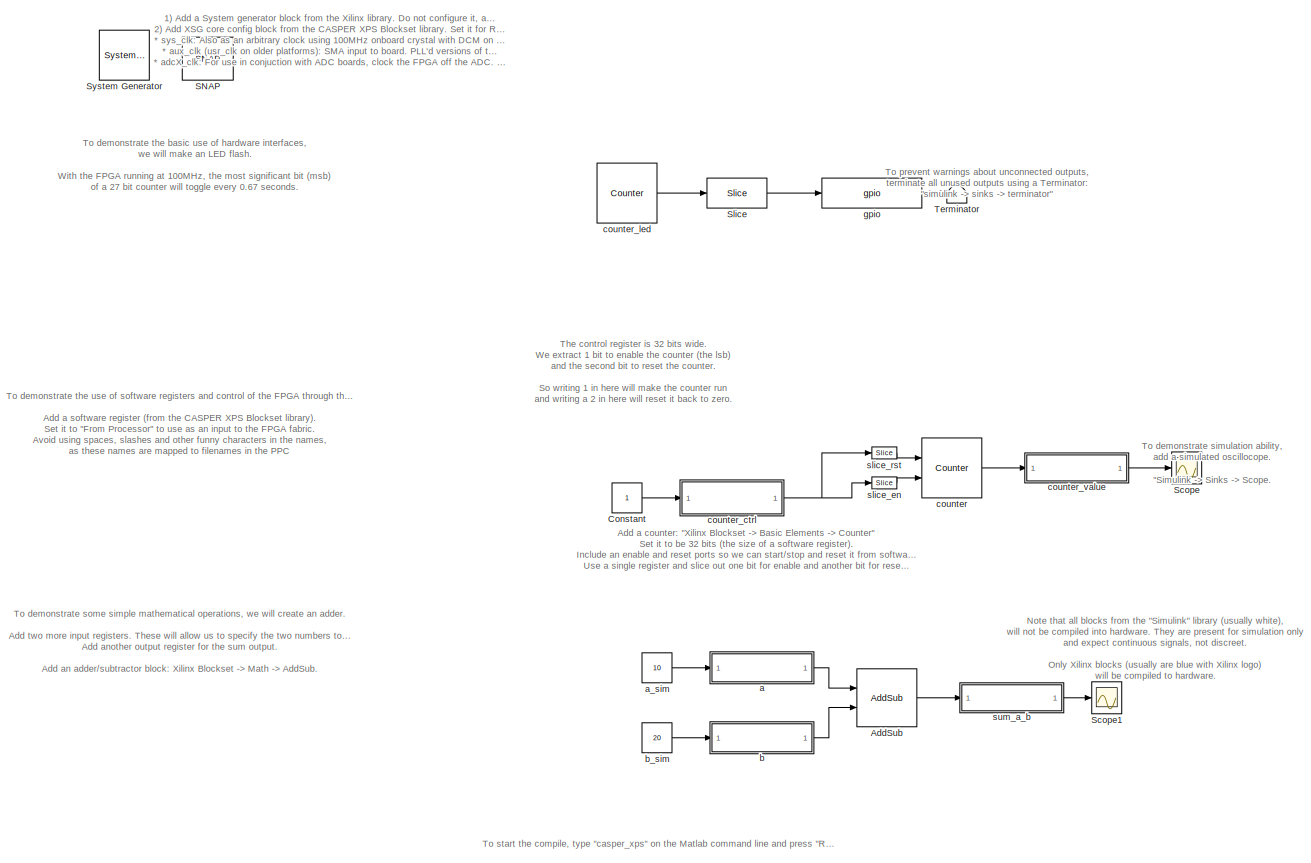
[diagram: root canvas - part 1/1, most of the canvas]
MODEL slx_58e610c78df9
KIND model
CONFIG AbsTol = auto
CONFIG EnableMultiTasking = off
CONFIG FixedStep = auto
CONFIG MaxStep = auto
CONFIG MinStep = auto
CONFIG RelTol = 1e-3
CONFIG SampleTimeConstraint = Unconstrained
CONFIG Solver = VariableStepDiscrete
CONFIG SolverName = VariableStepDiscrete
CONFIG StartTime = 0.0
CONFIG StopTime = 100
BLOCK [Reference]  System Generator  REF=xbsIndex_r4/ System Generator
  AttributesFormatString = System\nGenerator
  Ports = []
  SourceBlock = xbsIndex_r4/ System Generator
  SourceType = Xilinx System Generator Block
  Tag = genX
  UserDataPersistent = on
BLOCK [Reference] AddSub  REF=xbsIndex_r4/AddSub
  Ports = [2, 1]
  SourceBlock = xbsIndex_r4/AddSub
  SourceType = Xilinx Adder/Subtracter Block
BLOCK [Constant] Constant
BLOCK [Reference] SNAP  REF=xps_library/Platforms/SNAP  (lib defined in mdl_00b5cec29cd0, mdl_02ab6ecaa3d1, +5 more)
  Ports = []
  SourceBlock = xps_library/Platforms/SNAP
  SourceProductName = CASPER XPS Blockset
  SourceType = xsg core config
  Tag = xps:xsg
BLOCK [Scope] Scope
  Floating = off
  NumInputPorts = 1
  Ports = [1]
  ScopeSpecificationString = C++SS(StrPVP('Location','[148, 350, 749, 780]'),StrPVP('Open','off'),StrPVP('ZoomMode','xonly'),MxPVP('AxesTitles',53,'struct(''axes1'',''%<SignalLabel>'')'),MxPVP('ScopeGraphics',56,'struct(''FigureColor'',''[0.5 0.5 0.5]'',''AxesColor'',''[0 0 0]'',''AxesTickColor'',''[1 1 1]'',''LineColors'',''[1 1 0;1 0 1;0 1 1;1 0 0;0 1 0;0 0 1]'',''LineStyles'',''-|-|-|-|-|-'',''LineWidths'',''[0.5 0.5 0.5 0...<+266ch>
BLOCK [Scope] Scope1
  Floating = off
  NumInputPorts = 1
  Ports = [1]
  ScopeSpecificationString = C++SS(StrPVP('Location','[178, 380, 1029, 931]'),StrPVP('Open','off'),StrPVP('ZoomMode','yonly'),MxPVP('AxesTitles',53,'struct(''axes1'',''%<SignalLabel>'')'),MxPVP('ScopeGraphics',56,'struct(''FigureColor'',''[0.5 0.5 0.5]'',''AxesColor'',''[0 0 0]'',''AxesTickColor'',''[1 1 1]'',''LineColors'',''[1 1 0;1 0 1;0 1 1;1 0 0;0 1 0;0 0 1]'',''LineStyles'',''-|-|-|-|-|-'',''LineWidths'',''[0.5 0.5 0.5 ...<+299ch>
BLOCK [Reference] Slice  REF=xbsIndex_r4/Slice
  Ports = [1, 1]
  SourceBlock = xbsIndex_r4/Slice
  SourceType = Xilinx Bit Slice Extractor Block
BLOCK [Terminator] Terminator
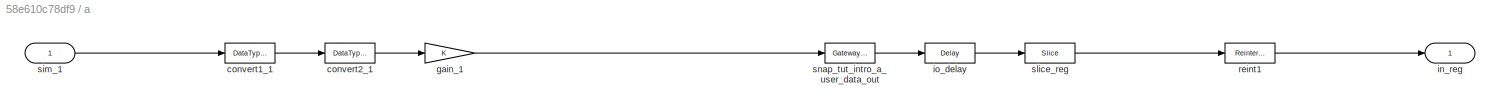
BLOCK [SubSystem] a
  AncestorBlock = xps_library/Memory/software_register
  AttributesFormatString = 1input
  Ports = [1, 1]
  RequestExecContextInheritance = off
  Tag = xps:sw_reg
BLOCK [DataTypeConversion] a/convert1_1
  LockScale = on
  OutDataTypeStr = fixdt('ufix32_En0')
  RndMeth = Floor
  SaturateOnIntegerOverflow = off
BLOCK [DataTypeConversion] a/convert2_1
  ConvertRealWorld = Stored Integer (SI)
  LockScale = on
  OutDataTypeStr = fixdt('ufix32_En0')
  RndMeth = Floor
  SaturateOnIntegerOverflow = off
BLOCK [Gain] a/gain_1
  OutDataTypeStr = Inherit: Inherit via internal rule
  ParamDataTypeStr = Inherit: Inherit via internal rule
  SaturateOnIntegerOverflow = off
BLOCK [Outport] a/in_reg
  IconDisplay = Port number
BLOCK [Reference] a/io_delay  REF=xbsIndex_r4/Delay
  Ports = [1, 1]
  SourceBlock = xbsIndex_r4/Delay
  SourceType = Xilinx Delay Block
BLOCK [Reference] a/reint1  REF=xbsIndex_r4/Reinterpret
  Ports = [1, 1]
  SourceBlock = xbsIndex_r4/Reinterpret
  SourceType = Xilinx Type Reinterpreter Block
BLOCK [Inport] a/sim_1
  IconDisplay = Port number
BLOCK [Reference] a/slice_reg  REF=xbsIndex_r4/Slice
  Ports = [1, 1]
  SourceBlock = xbsIndex_r4/Slice
  SourceType = Xilinx Bit Slice Extractor Block
BLOCK [Reference] a/snap_tut_intro_a_user_data_out  REF=xbsIndex_r4/Gateway In
  Ports = [1, 1]
  SourceBlock = xbsIndex_r4/Gateway In
  SourceType = Xilinx Gateway In Block
BLOCK [Constant] a_sim
  Value = 10
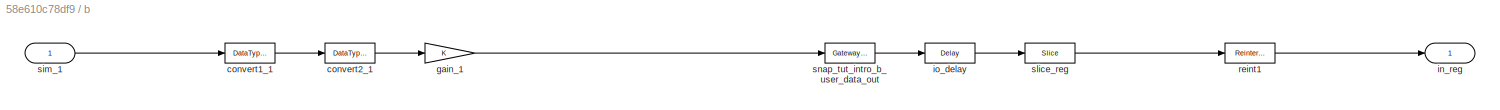
BLOCK [SubSystem] b
  AncestorBlock = xps_library/Memory/software_register
  AttributesFormatString = 1input
  Ports = [1, 1]
  RequestExecContextInheritance = off
  Tag = xps:sw_reg
BLOCK [DataTypeConversion] b/convert1_1
  LockScale = on
  OutDataTypeStr = fixdt('ufix32_En0')
  RndMeth = Floor
  SaturateOnIntegerOverflow = off
BLOCK [DataTypeConversion] b/convert2_1
  ConvertRealWorld = Stored Integer (SI)
  LockScale = on
  OutDataTypeStr = fixdt('ufix32_En0')
  RndMeth = Floor
  SaturateOnIntegerOverflow = off
BLOCK [Gain] b/gain_1
  OutDataTypeStr = Inherit: Inherit via internal rule
  ParamDataTypeStr = Inherit: Inherit via internal rule
  SaturateOnIntegerOverflow = off
BLOCK [Outport] b/in_reg
  IconDisplay = Port number
BLOCK [Reference] b/io_delay  REF=xbsIndex_r4/Delay
  Ports = [1, 1]
  SourceBlock = xbsIndex_r4/Delay
  SourceType = Xilinx Delay Block
BLOCK [Reference] b/reint1  REF=xbsIndex_r4/Reinterpret
  Ports = [1, 1]
  SourceBlock = xbsIndex_r4/Reinterpret
  SourceType = Xilinx Type Reinterpreter Block
BLOCK [Inport] b/sim_1
  IconDisplay = Port number
BLOCK [Reference] b/slice_reg  REF=xbsIndex_r4/Slice
  Ports = [1, 1]
  SourceBlock = xbsIndex_r4/Slice
  SourceType = Xilinx Bit Slice Extractor Block
BLOCK [Reference] b/snap_tut_intro_b_user_data_out  REF=xbsIndex_r4/Gateway In
  Ports = [1, 1]
  SourceBlock = xbsIndex_r4/Gateway In
  SourceType = Xilinx Gateway In Block
BLOCK [Constant] b_sim
  Value = 20
BLOCK [Reference] counter  REF=xbsIndex_r4/Counter
  Ports = [2, 1]
  SourceBlock = xbsIndex_r4/Counter
  SourceType = Xilinx Counter Block
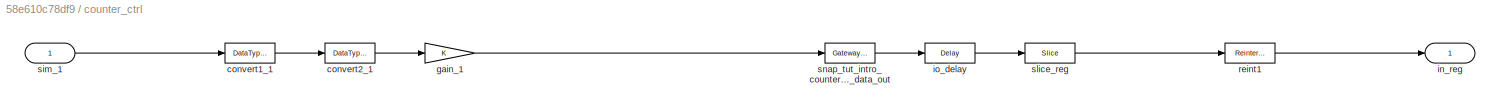
BLOCK [SubSystem] counter_ctrl
  AncestorBlock = xps_library/Memory/software_register
  AttributesFormatString = 1input
  Ports = [1, 1]
  RequestExecContextInheritance = off
  Tag = xps:sw_reg
BLOCK [DataTypeConversion] counter_ctrl/convert1_1
  LockScale = on
  OutDataTypeStr = fixdt('ufix32_En0')
  RndMeth = Floor
  SaturateOnIntegerOverflow = off
BLOCK [DataTypeConversion] counter_ctrl/convert2_1
  ConvertRealWorld = Stored Integer (SI)
  LockScale = on
  OutDataTypeStr = fixdt('ufix32_En0')
  RndMeth = Floor
  SaturateOnIntegerOverflow = off
BLOCK [Gain] counter_ctrl/gain_1
  OutDataTypeStr = Inherit: Inherit via internal rule
  ParamDataTypeStr = Inherit: Inherit via internal rule
  SaturateOnIntegerOverflow = off
BLOCK [Outport] counter_ctrl/in_reg
  IconDisplay = Port number
BLOCK [Reference] counter_ctrl/io_delay  REF=xbsIndex_r4/Delay
  Ports = [1, 1]
  SourceBlock = xbsIndex_r4/Delay
  SourceType = Xilinx Delay Block
BLOCK [Reference] counter_ctrl/reint1  REF=xbsIndex_r4/Reinterpret
  Ports = [1, 1]
  SourceBlock = xbsIndex_r4/Reinterpret
  SourceType = Xilinx Type Reinterpreter Block
BLOCK [Inport] counter_ctrl/sim_1
  IconDisplay = Port number
BLOCK [Reference] counter_ctrl/slice_reg  REF=xbsIndex_r4/Slice
  Ports = [1, 1]
  SourceBlock = xbsIndex_r4/Slice
  SourceType = Xilinx Bit Slice Extractor Block
BLOCK [Reference] counter_ctrl/snap_tut_intro_counter_ctrl_user_data_out  REF=xbsIndex_r4/Gateway In
  Ports = [1, 1]
  SourceBlock = xbsIndex_r4/Gateway In
  SourceType = Xilinx Gateway In Block
BLOCK [Reference] counter_led  REF=xbsIndex_r4/Counter
  Ports = [0, 1]
  SourceBlock = xbsIndex_r4/Counter
  SourceType = Xilinx Counter Block
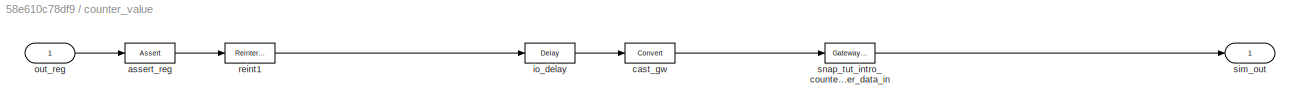
BLOCK [SubSystem] counter_value
  AncestorBlock = xps_library/Memory/software_register
  AttributesFormatString = 1output
  Ports = [1, 1]
  RequestExecContextInheritance = off
  Tag = xps:sw_reg
BLOCK [Reference] counter_value/assert_reg  REF=xbsIndex_r4/Assert
  Ports = [1, 1]
  SourceBlock = xbsIndex_r4/Assert
  SourceType = Xilinx Assert Block
BLOCK [Reference] counter_value/cast_gw  REF=xbsIndex_r4/Convert
  Ports = [1, 1]
  SourceBlock = xbsIndex_r4/Convert
  SourceType = Xilinx Type Converter Block
BLOCK [Reference] counter_value/io_delay  REF=xbsIndex_r4/Delay
  Ports = [1, 1]
  SourceBlock = xbsIndex_r4/Delay
  SourceType = Xilinx Delay Block
BLOCK [Inport] counter_value/out_reg
  IconDisplay = Port number
BLOCK [Reference] counter_value/reint1  REF=xbsIndex_r4/Reinterpret
  Ports = [1, 1]
  SourceBlock = xbsIndex_r4/Reinterpret
  SourceType = Xilinx Type Reinterpreter Block
BLOCK [Outport] counter_value/sim_out
  IconDisplay = Port number
BLOCK [Reference] counter_value/snap_tut_intro_counter_value_user_data_in  REF=xbsIndex_r4/Gateway Out
  Ports = [1, 1]
  SourceBlock = xbsIndex_r4/Gateway Out
  SourceType = Xilinx Gateway Out Block
BLOCK [Reference] gpio  REF=xps_library/IO/gpio  (lib defined in mdl_00b5cec29cd0, mdl_02ab6ecaa3d1, +5 more)
  Ports = [1, 1]
  SourceBlock = xps_library/IO/gpio
  SourceProductName = CASPER XPS Blockset
  SourceType = gpio
  Tag = xps:gpio
BLOCK [Reference] slice_en  REF=xbsIndex_r4/Slice
  Ports = [1, 1]
  SourceBlock = xbsIndex_r4/Slice
  SourceType = Xilinx Bit Slice Extractor Block
BLOCK [Reference] slice_rst  REF=xbsIndex_r4/Slice
  Ports = [1, 1]
  SourceBlock = xbsIndex_r4/Slice
  SourceType = Xilinx Bit Slice Extractor Block
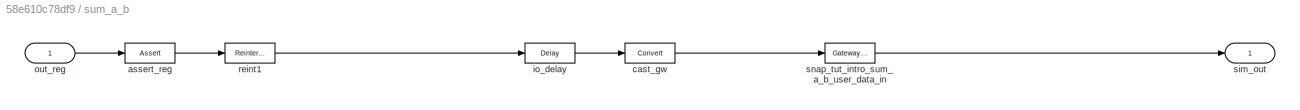
BLOCK [SubSystem] sum_a_b
  AncestorBlock = xps_library/Memory/software_register
  AttributesFormatString = 1output
  Ports = [1, 1]
  RequestExecContextInheritance = off
  Tag = xps:sw_reg
BLOCK [Reference] sum_a_b/assert_reg  REF=xbsIndex_r4/Assert
  Ports = [1, 1]
  SourceBlock = xbsIndex_r4/Assert
  SourceType = Xilinx Assert Block
BLOCK [Reference] sum_a_b/cast_gw  REF=xbsIndex_r4/Convert
  Ports = [1, 1]
  SourceBlock = xbsIndex_r4/Convert
  SourceType = Xilinx Type Converter Block
BLOCK [Reference] sum_a_b/io_delay  REF=xbsIndex_r4/Delay
  Ports = [1, 1]
  SourceBlock = xbsIndex_r4/Delay
  SourceType = Xilinx Delay Block
BLOCK [Inport] sum_a_b/out_reg
  IconDisplay = Port number
BLOCK [Reference] sum_a_b/reint1  REF=xbsIndex_r4/Reinterpret
  Ports = [1, 1]
  SourceBlock = xbsIndex_r4/Reinterpret
  SourceType = Xilinx Type Reinterpreter Block
BLOCK [Outport] sum_a_b/sim_out
  IconDisplay = Port number
BLOCK [Reference] sum_a_b/snap_tut_intro_sum_a_b_user_data_in  REF=xbsIndex_r4/Gateway Out
  Ports = [1, 1]
  SourceBlock = xbsIndex_r4/Gateway Out
  SourceType = Xilinx Gateway Out Block
ANNOTATION (root): 1) Add a System generator block from the Xilinx library. Do not configure it, add an "XSG core config" to do this for you. 2) Add XSG core config block from the CASPER XPS Blockset library. Set it for ROACH2:sx475t with sys_clk as the source. sys_clk is an onboard 100MHz crystal. Other options include: * sys_clk: Also as an arbitrary clock using 100MHz onboard crystal with DCM on FPGA to produce a...<+414ch>
ANNOTATION (root): Add a counter: "Xilinx Blockset -> Basic Elements -> Counter" Set it to be 32 bits (the size of a software register). Include an enable and reset ports so we can start/stop and reset it from software. Use a single register and slice out one bit for enable and another bit for reset.
ANNOTATION (root): Note that all blocks from the "Simulink" library (usually white), will not be compiled into hardware. They are present for simulation only and expect continuous signals, not discreet. Only Xilinx blocks (usually are blue with Xilinx logo) will be compiled to hardware. For this reason, you need to use "gateway" blocks whenever connecting a Simulink scope or constant for simulations. Some of the CAS...<+84ch>
ANNOTATION (root): The control register is 32 bits wide. We extract 1 bit to enable the counter (the lsb) and the second bit to reset the counter. So writing 1 in here will make the counter run and writing a 2 in here will reset it back to zero. Make sure the output is set to "boolean" and that you're slicing from the lsb end.
ANNOTATION (root): To demonstrate simulation ability, add a simulated oscillocope. "Simulink -> Sinks -> Scope.
ANNOTATION (root): To demonstrate some simple mathematical operations, we will create an adder. Add two more input registers. These will allow us to specify the two numbers to add. Add another output register for the sum output. Add an adder/subtractor block: Xilinx Blockset -> Math -> AddSub. The output register is 32 bits. If we add two 32 bit numbers, we will have 33 bits. There are a number of ways of fixing thi...<+423ch>
ANNOTATION (root): To demonstrate the basic use of hardware interfaces, we will make an LED flash. With the FPGA running at 100MHz, the most significant bit (msb) of a 27 bit counter will toggle every 0.67 seconds. Add a counter (Xilinx Blockset -> Basic Elements -> Counter). Set it for free running, 27 bits, unsigned. Add a slice block to select out the msb (Xilinx Blockset -> Basic Elements -> Slice). Set it for 1...<+176ch>
ANNOTATION (root): To demonstrate the use of software registers and control of the FPGA through the PPC: Add a software register (from the CASPER XPS Blockset library). Set it to "From Processor" to use as an input to the FPGA fabric. Avoid using spaces, slashes and other funny characters in the names, as these names are mapped to filenames in the PPC (spaces automatically get remapped to underscores anyway). We pro...<+247ch>
ANNOTATION (root): To prevent warnings about unconnected outputs, terminate all unused outputs using a Terminator: "simulink -> sinks -> terminator"
ANNOTATION (root): To start the compile, type "casper_xps" on the Matlab command line and press "RUN XPS".
LINE AddSub:1 -> sum_a_b:1
LINE Constant:1 -> counter_ctrl:1
LINE Slice:1 -> gpio:1
LINE a:1 -> AddSub:1
LINE a_sim:1 -> a:1
LINE b:1 -> AddSub:2
LINE b_sim:1 -> b:1
LINE counter:1 -> counter_value:1
NET counter_ctrl:1 -> slice_en:1, slice_rst:1
LINE counter_led:1 -> Slice:1
LINE counter_value:1 -> Scope:1
LINE gpio:1 -> Terminator:1
LINE slice_en:1 -> counter:2
LINE slice_rst:1 -> counter:1
LINE sum_a_b:1 -> Scope1:1
note: NET lines group one-source signal fan-out (src -> all destinations, sorted); 1:1 wires keep LINE
